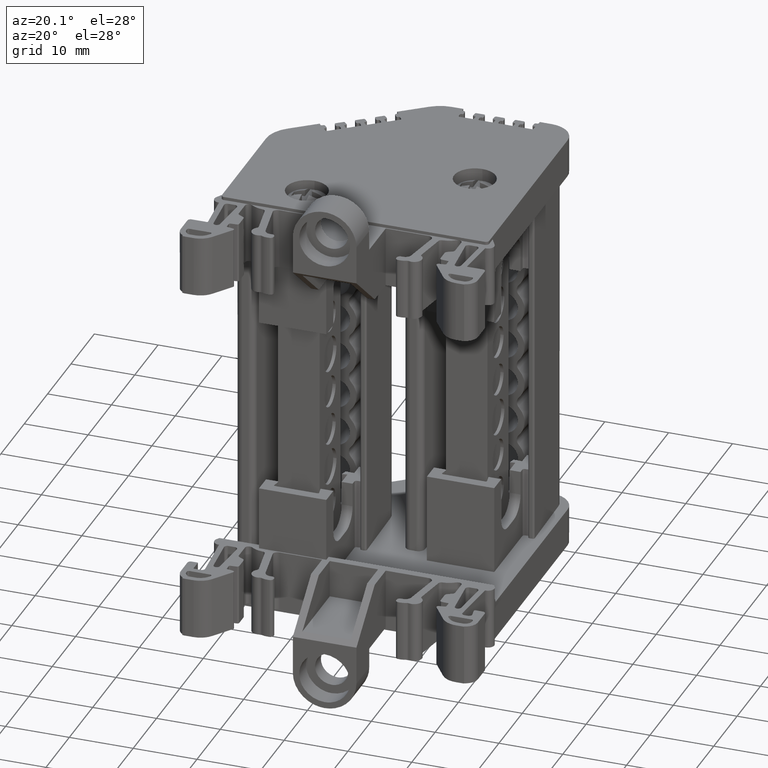
[diagram: clean part render]
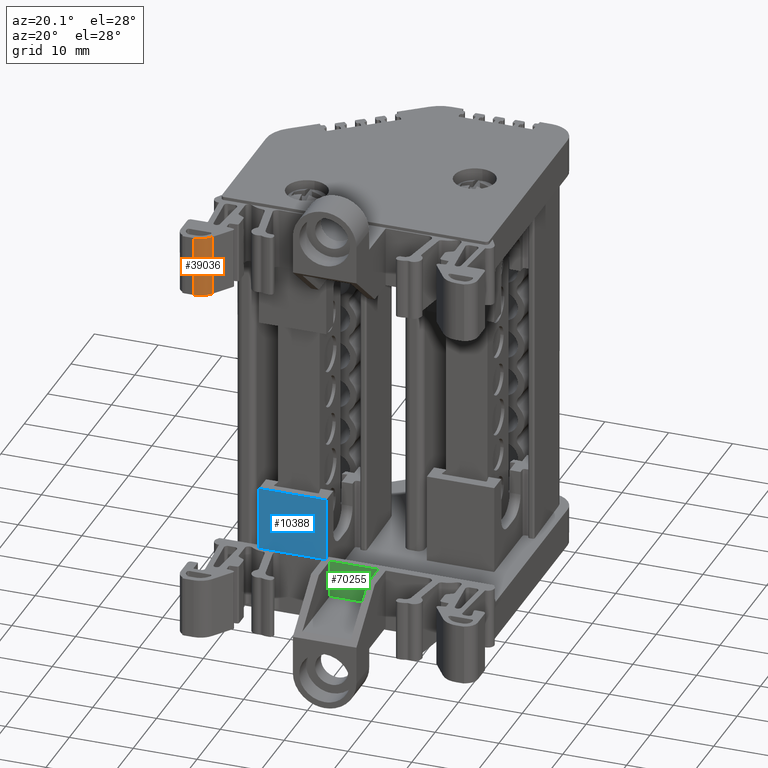
[diagram: same view with three faces highlighted in distinct colors, each labeled with its STEP entity id]
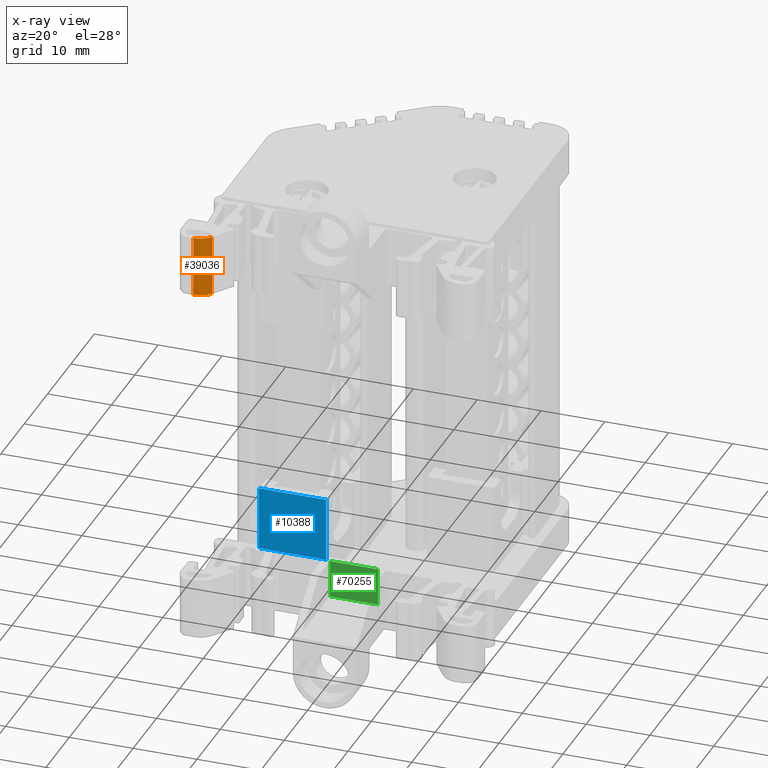
[diagram: x-ray of the same camera — body ghosted, the three highlighted faces saturated]
A machine part, auxiliary view with three faces highlighted in distinct colors.
The next image is the same camera in x-ray (body ghosted, the three faces saturated) — at least one of them is partly hidden behind the body in this view.
Their STEP definitions:

[orange] entity #39036 — the highlighted cylindrical surface (edge-blend (fillet) strip) has radius 2.9912 mm, axis along (-0, 0, 1).
#890 = DIRECTION ( 'NONE',  ( 3.513898865141059500E-030, -7.151619244811209800E-046, -1.000000000000000000 ) ) ;
#909 = LINE ( 'NONE', #911, #18463 ) ;
#911 = CARTESIAN_POINT ( 'NONE',  ( -67.37618379242266500, -1.325470651713843900, 15.46663835255145800 ) ) ;
#16310 = EDGE_CURVE ( 'NONE', #26425, #26677, #50525, .T. ) ;
#16428 = EDGE_CURVE ( 'NONE', #26677, #26329, #38111, .T. ) ;
#18463 = VECTOR ( 'NONE', #890, 1000.000000000000000 ) ;
#26269 = VERTEX_POINT ( 'NONE', #54222 ) ;
#26329 = VERTEX_POINT ( 'NONE', #54250 ) ;
#26425 = VERTEX_POINT ( 'NONE', #54404 ) ;
#26677 = VERTEX_POINT ( 'NONE', #54655 ) ;
#38111 = B_SPLINE_CURVE_WITH_KNOTS ( 'NONE', 3,
 ( #50775, #50790, #50750, #50753, #50791, #50797 ),
 .UNSPECIFIED., .F., .F.,
 ( 4, 2, 4 ),
 ( 0.0000000000000000000, 0.5000000000000000000, 1.000000000000000000 ),
 .UNSPECIFIED. ) ;
#39036 = ADVANCED_FACE ( 'NONE', ( #59985 ), #59961, .T. ) ;
#44808 = VECTOR ( 'NONE', #50499, 1000.000000000000000 ) ;
#45087 = AXIS2_PLACEMENT_3D ( 'NONE', #59952, #59939, #59951 ) ;
#50499 = DIRECTION ( 'NONE',  ( -3.513898865141059500E-030, 7.151619244811209800E-046, 1.000000000000000000 ) ) ;
#50525 = LINE ( 'NONE', #50532, #44808 ) ;
#50532 = CARTESIAN_POINT ( 'NONE',  ( -64.91315574361664200, -0.05008754996738292600, 15.46663835255145800 ) ) ;
#50750 = CARTESIAN_POINT ( 'NONE',  ( -65.56105858730859400, -0.7694941511646178300, 24.93866975585650200 ) ) ;
#50753 = CARTESIAN_POINT ( 'NONE',  ( -66.41475492056888200, -1.211547532566787300, 24.93866975585649800 ) ) ;
#50775 = CARTESIAN_POINT ( 'NONE',  ( -64.91315574361664200, -0.05008754996738439000, 24.93866975585649800 ) ) ;
#50790 = CARTESIAN_POINT ( 'NONE',  ( -65.18887685209563200, -0.4438260744946318500, 24.93866975585649100 ) ) ;
#50791 = CARTESIAN_POINT ( 'NONE',  ( -66.89550939502557000, -1.327539236916207300, 24.93866975585649800 ) ) ;
#50797 = CARTESIAN_POINT ( 'NONE',  ( -67.37618379242266500, -1.325470651713840200, 24.93866975585649800 ) ) ;
#54222 = CARTESIAN_POINT ( 'NONE',  ( -67.37618379242266500, -1.325470651713840200, 15.46663835255146000 ) ) ;
#54250 = CARTESIAN_POINT ( 'NONE',  ( -67.37618379242266500, -1.325470651713840200, 24.93866975585649800 ) ) ;
#54404 = CARTESIAN_POINT ( 'NONE',  ( -64.91315574361664200, -0.05008754996737685400, 15.46663835255146000 ) ) ;
#54655 = CARTESIAN_POINT ( 'NONE',  ( -64.91315574361664200, -0.05008754996738439000, 24.93866975585649800 ) ) ;
#59939 = DIRECTION ( 'NONE',  ( -3.513898865141059500E-030, 7.151619244811209800E-046, 1.000000000000000000 ) ) ;
#59951 = DIRECTION ( 'NONE',  ( 1.000000000000000000, 0.0000000000000000000, 0.0000000000000000000 ) ) ;
#59952 = CARTESIAN_POINT ( 'NONE',  ( -67.36331140269159300, 1.665669461814501400, 15.46663835255145800 ) ) ;
#59961 = CYLINDRICAL_SURFACE ( 'NONE', #45087, 2.991167811603981300 ) ;
#59985 = FACE_OUTER_BOUND ( 'NONE', #67528, .T. ) ;
#63659 = B_SPLINE_CURVE_WITH_KNOTS ( 'NONE', 3,
 ( #71298, #71385, #71369, #71362, #71348, #71354 ),
 .UNSPECIFIED., .F., .F.,
 ( 4, 2, 4 ),
 ( 0.0000000000000000000, 0.5000000000000000000, 1.000000000000000000 ),
 .UNSPECIFIED. ) ;
#67528 = EDGE_LOOP ( 'NONE', ( #72478, #72486, #72417, #72365 ) ) ;
#70319 = EDGE_CURVE ( 'NONE', #26269, #26425, #63659, .T. ) ;
#70638 = EDGE_CURVE ( 'NONE', #26329, #26269, #909, .T. ) ;
#71298 = CARTESIAN_POINT ( 'NONE',  ( -67.37618379242266500, -1.325470651713840200, 15.46663835255146000 ) ) ;
#71348 = CARTESIAN_POINT ( 'NONE',  ( -65.18887685209564600, -0.4438260744946319100, 15.46663835255146100 ) ) ;
#71354 = CARTESIAN_POINT ( 'NONE',  ( -64.91315574361664200, -0.05008754996737685400, 15.46663835255146000 ) ) ;
#71362 = CARTESIAN_POINT ( 'NONE',  ( -65.56105858730856500, -0.7694941511646180600, 15.46663835255145800 ) ) ;
#71369 = CARTESIAN_POINT ( 'NONE',  ( -66.41475492056889600, -1.211547532566787000, 15.46663835255146300 ) ) ;
#71385 = CARTESIAN_POINT ( 'NONE',  ( -66.89550939502555600, -1.327539236916206900, 15.46663835255145600 ) ) ;
#72365 = ORIENTED_EDGE ( 'NONE', *, *, #16428, .T. ) ;
#72417 = ORIENTED_EDGE ( 'NONE', *, *, #16310, .T. ) ;
#72478 = ORIENTED_EDGE ( 'NONE', *, *, #70638, .T. ) ;
#72486 = ORIENTED_EDGE ( 'NONE', *, *, #70319, .T. ) ;

[blue] entity #10388 — the highlighted planar face has unit normal (-0, -1, 0).
#3954 = VERTEX_POINT ( 'NONE', #31031 ) ;
#3958 = VERTEX_POINT ( 'NONE', #31009 ) ;
#3969 = VERTEX_POINT ( 'NONE', #31014 ) ;
#4008 = VERTEX_POINT ( 'NONE', #31133 ) ;
#5576 = VECTOR ( 'NONE', #29294, 1000.000000000000000 ) ;
#5599 = VECTOR ( 'NONE', #32170, 1000.000000000000000 ) ;
#5609 = VECTOR ( 'NONE', #29295, 1000.000000000000000 ) ;
#10388 = ADVANCED_FACE ( 'NONE', ( #33750 ), #33789, .T. ) ;
#11223 = EDGE_CURVE ( 'NONE', #3958, #4008, #62482, .T. ) ;
#11269 = EDGE_CURVE ( 'NONE', #3958, #3969, #29287, .T. ) ;
#11274 = EDGE_CURVE ( 'NONE', #3954, #3969, #29291, .T. ) ;
#11297 = EDGE_CURVE ( 'NONE', #3954, #4008, #32166, .T. ) ;
#18592 = AXIS2_PLACEMENT_3D ( 'NONE', #33766, #33806, #33807 ) ;
#29080 = CARTESIAN_POINT ( 'NONE',  ( -61.77805005991850600, 11.42205551702950600, -32.09224290364846900 ) ) ;
#29082 = CARTESIAN_POINT ( 'NONE',  ( -51.22521002070163100, 11.42205551702874400, -32.09224290364846900 ) ) ;
#29108 = CARTESIAN_POINT ( 'NONE',  ( -54.74282336710725600, 11.42205551702874900, -32.09224290364846900 ) ) ;
#29123 = CARTESIAN_POINT ( 'NONE',  ( -58.26043671351288100, 11.42205551702901200, -32.09224290364846900 ) ) ;
#29287 = LINE ( 'NONE', #29292, #5576 ) ;
#29291 = LINE ( 'NONE', #29326, #5609 ) ;
#29292 = CARTESIAN_POINT ( 'NONE',  ( -61.77805005991850600, 11.42205551702956400, 47.32994441192240500 ) ) ;
#29294 = DIRECTION ( 'NONE',  ( -3.469446952988439500E-018, 4.557183009288460000E-031, 1.000000000000000000 ) ) ;
#29295 = DIRECTION ( 'NONE',  ( -1.000000000000000000, 7.419278866477789400E-014, -0.0000000000000000000 ) ) ;
#29326 = CARTESIAN_POINT ( 'NONE',  ( -64.51995388718779600, 11.42205551702955400, -22.12168353174845200 ) ) ;
#31009 = CARTESIAN_POINT ( 'NONE',  ( -61.77805005991850600, 11.42205551702950600, -32.09224290364846900 ) ) ;
#31014 = CARTESIAN_POINT ( 'NONE',  ( -61.77805005991850600, 11.42205551702949500, -22.12168353174845600 ) ) ;
#31031 = CARTESIAN_POINT ( 'NONE',  ( -51.22521002070195100, 11.42205551702871700, -22.12168353174845600 ) ) ;
#31133 = CARTESIAN_POINT ( 'NONE',  ( -51.22521002070163100, 11.42205551702874400, -32.09224290364846900 ) ) ;
#32166 = LINE ( 'NONE', #32182, #5599 ) ;
#32170 = DIRECTION ( 'NONE',  ( 3.469446950784518900E-018, 5.041723658430198100E-031, -1.000000000000000000 ) ) ;
#32182 = CARTESIAN_POINT ( 'NONE',  ( -51.22521002070193700, 11.42205551702882500, 47.32994441192240500 ) ) ;
#33750 = FACE_OUTER_BOUND ( 'NONE', #68393, .T. ) ;
#33766 = CARTESIAN_POINT ( 'NONE',  ( -64.51995388718779600, 11.42205551702894400, -98.64254787400605600 ) ) ;
#33789 = PLANE ( 'NONE',  #18592 ) ;
#33806 = DIRECTION ( 'NONE',  ( -7.419278866477789400E-014, -1.000000000000000000, 7.965850201685501300E-015 ) ) ;
#33807 = DIRECTION ( 'NONE',  ( 1.000000000000000000, -7.419278866477789400E-014, 0.0000000000000000000 ) ) ;
#62482 = B_SPLINE_CURVE_WITH_KNOTS ( 'NONE', 3,
 ( #29080, #29123, #29108, #29082 ),
 .UNSPECIFIED., .F., .F.,
 ( 4, 4 ),
 ( 0.0000000000000000000, 1.000000000000000000 ),
 .UNSPECIFIED. ) ;
#68393 = EDGE_LOOP ( 'NONE', ( #73514, #73524, #73532, #73505 ) ) ;
#73505 = ORIENTED_EDGE ( 'NONE', *, *, #11269, .F. ) ;
#73514 = ORIENTED_EDGE ( 'NONE', *, *, #11223, .T. ) ;
#73524 = ORIENTED_EDGE ( 'NONE', *, *, #11297, .F. ) ;
#73532 = ORIENTED_EDGE ( 'NONE', *, *, #11274, .T. ) ;

[green] entity #70255 — the highlighted planar face has unit normal (-0, -1, 0).
#4564 = VECTOR ( 'NONE', #35412, 1000.000000000000000 ) ;
#4761 = VECTOR ( 'NONE', #40118, 1000.000000000000000 ) ;
#4766 = VECTOR ( 'NONE', #40100, 1000.000000000000000 ) ;
#8568 = EDGE_LOOP ( 'NONE', ( #9161, #9112, #9130, #9128 ) ) ;
#9112 = ORIENTED_EDGE ( 'NONE', *, *, #11541, .T. ) ;
#9128 = ORIENTED_EDGE ( 'NONE', *, *, #12167, .F. ) ;
#9130 = ORIENTED_EDGE ( 'NONE', *, *, #12163, .F. ) ;
#9161 = ORIENTED_EDGE ( 'NONE', *, *, #12165, .T. ) ;
#11541 = EDGE_CURVE ( 'NONE', #24329, #24370, #35322, .T. ) ;
#12163 = EDGE_CURVE ( 'NONE', #24462, #24370, #39943, .T. ) ;
#12165 = EDGE_CURVE ( 'NONE', #24490, #24329, #40040, .T. ) ;
#12167 = EDGE_CURVE ( 'NONE', #24490, #24462, #38447, .T. ) ;
#18278 = AXIS2_PLACEMENT_3D ( 'NONE', #71068, #71051, #71061 ) ;
#24329 = VERTEX_POINT ( 'NONE', #55811 ) ;
#24370 = VERTEX_POINT ( 'NONE', #55912 ) ;
#24462 = VERTEX_POINT ( 'NONE', #56126 ) ;
#24490 = VERTEX_POINT ( 'NONE', #56118 ) ;
#35322 = LINE ( 'NONE', #35372, #4564 ) ;
#35372 = CARTESIAN_POINT ( 'NONE',  ( -50.61132213551886800, 11.22264432959164700, -37.97487293306942700 ) ) ;
#35412 = DIRECTION ( 'NONE',  ( 1.000000000000000000, -2.282530889443165000E-016, 1.818229914602422200E-030 ) ) ;
#38447 = B_SPLINE_CURVE_WITH_KNOTS ( 'NONE', 3,
 ( #40041, #40048, #40070, #40054 ),
 .UNSPECIFIED., .F., .F.,
 ( 4, 4 ),
 ( 0.0000000000000000000, 1.000000000000000000 ),
 .UNSPECIFIED. ) ;
#39943 = LINE ( 'NONE', #39949, #4761 ) ;
#39949 = CARTESIAN_POINT ( 'NONE',  ( -43.03369701287485300, 11.22264432959170900, -28.70225271720235600 ) ) ;
#40040 = LINE ( 'NONE', #40098, #4766 ) ;
#40041 = CARTESIAN_POINT ( 'NONE',  ( -50.61132213551886800, 11.22264432959168100, -32.09224290364846200 ) ) ;
#40048 = CARTESIAN_POINT ( 'NONE',  ( -48.08544709463753000, 11.22264432959169200, -32.09224290364846200 ) ) ;
#40054 = CARTESIAN_POINT ( 'NONE',  ( -43.03369701287486000, 11.22264432959170800, -32.09224290364846200 ) ) ;
#40070 = CARTESIAN_POINT ( 'NONE',  ( -45.55957205375619900, 11.22264432959170200, -32.09224290364846200 ) ) ;
#40098 = CARTESIAN_POINT ( 'NONE',  ( -50.61132213551886800, 11.22264432959172200, -28.70225271720250500 ) ) ;
#40100 = DIRECTION ( 'NONE',  ( 0.0000000000000000000, -7.965850201685501300E-015, -1.000000000000000000 ) ) ;
#40118 = DIRECTION ( 'NONE',  ( 9.642931208652439700E-031, -3.362835714242704500E-046, -1.000000000000000000 ) ) ;
#55811 = CARTESIAN_POINT ( 'NONE',  ( -50.61132213551886800, 11.22264432959164700, -37.97487293306942000 ) ) ;
#55912 = CARTESIAN_POINT ( 'NONE',  ( -43.03369701287485300, 11.22264432959169000, -37.97487293306944200 ) ) ;
#56118 = CARTESIAN_POINT ( 'NONE',  ( -50.61132213551886800, 11.22264432959168100, -32.09224290364846200 ) ) ;
#56126 = CARTESIAN_POINT ( 'NONE',  ( -43.03369701287486000, 11.22264432959170800, -32.09224290364846200 ) ) ;
#70255 = ADVANCED_FACE ( 'NONE', ( #71076 ), #71021, .T. ) ;
#71021 = PLANE ( 'NONE',  #18278 ) ;
#71051 = DIRECTION ( 'NONE',  ( -2.282530889443165000E-016, -1.000000000000000000, 7.965850201685501300E-015 ) ) ;
#71061 = DIRECTION ( 'NONE',  ( 0.0000000000000000000, -7.965850201685501300E-015, -1.000000000000000000 ) ) ;
#71068 = CARTESIAN_POINT ( 'NONE',  ( -50.61132213551886800, 11.22264432959172200, -28.70225271720250500 ) ) ;
#71076 = FACE_OUTER_BOUND ( 'NONE', #8568, .T. ) ;